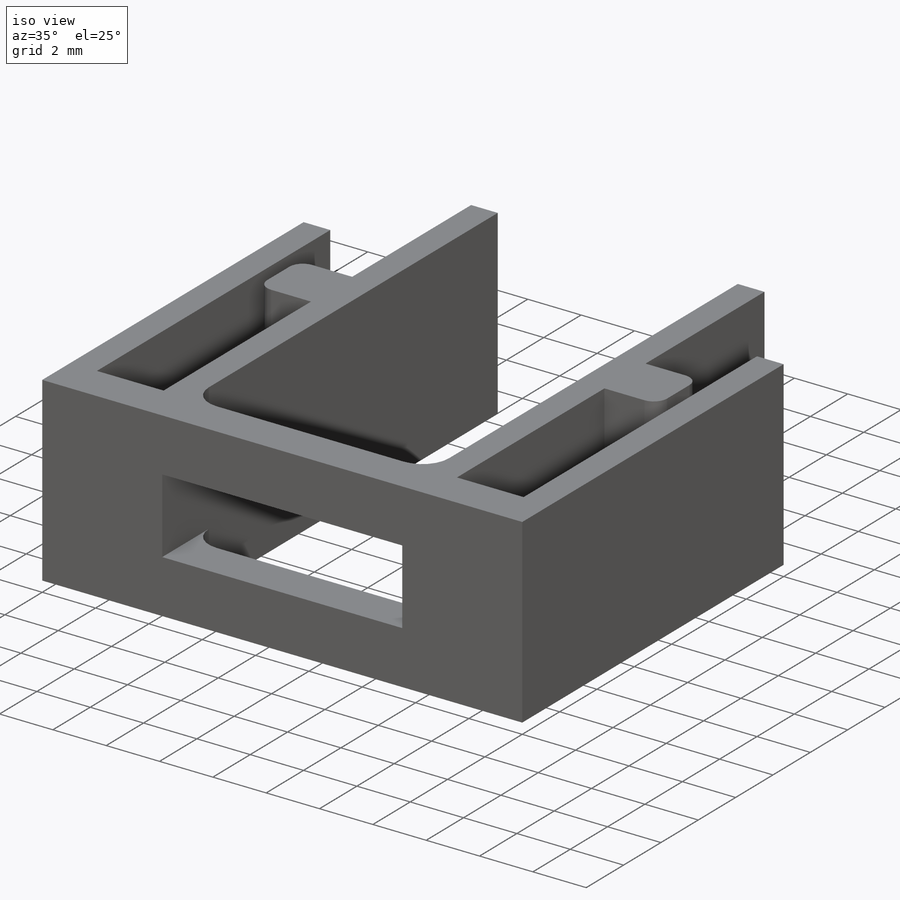
[diagram: iso view]
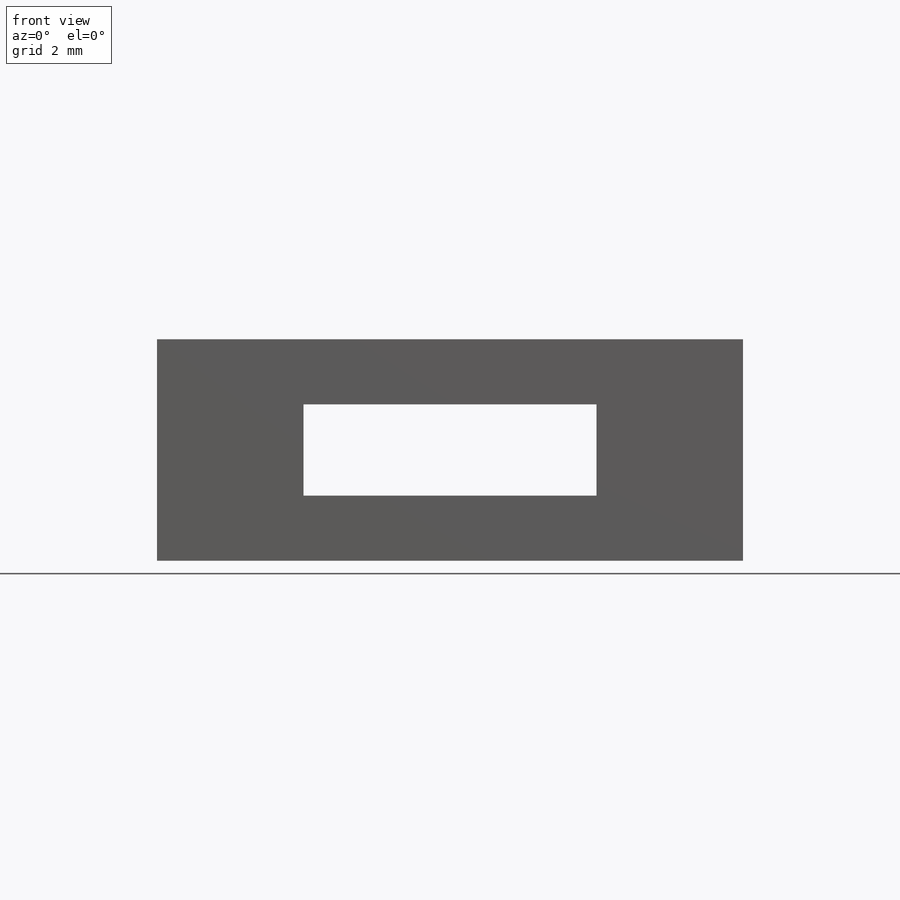
[diagram: front view]
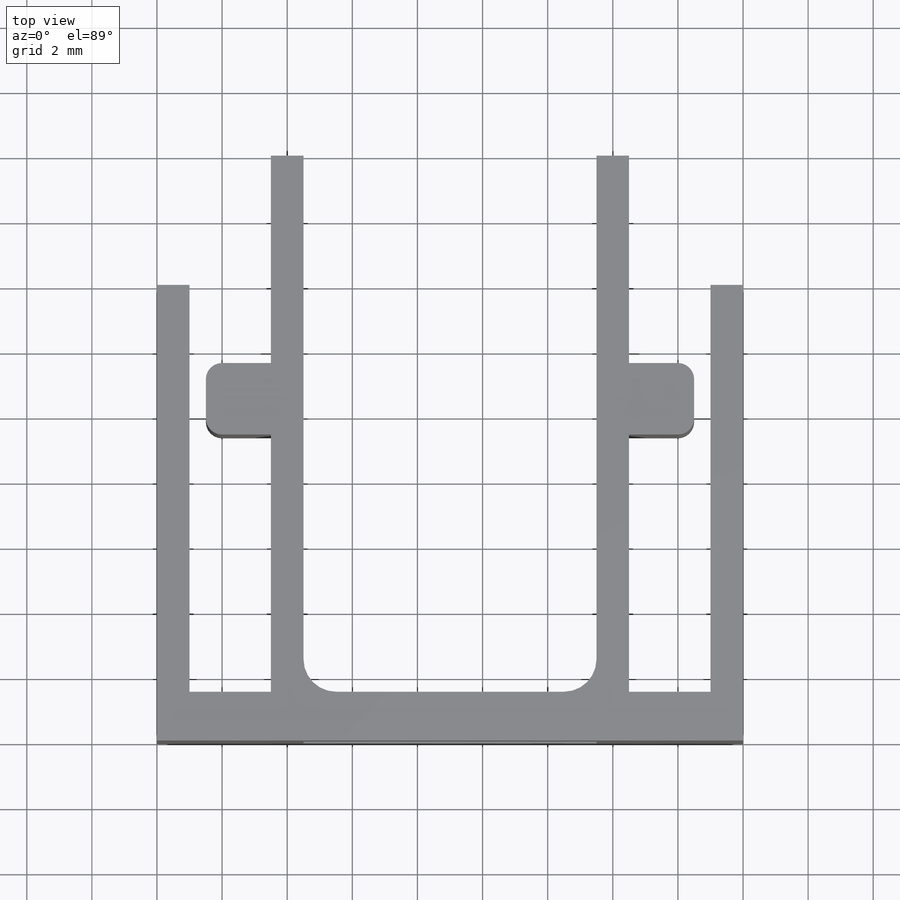
[diagram: top view]
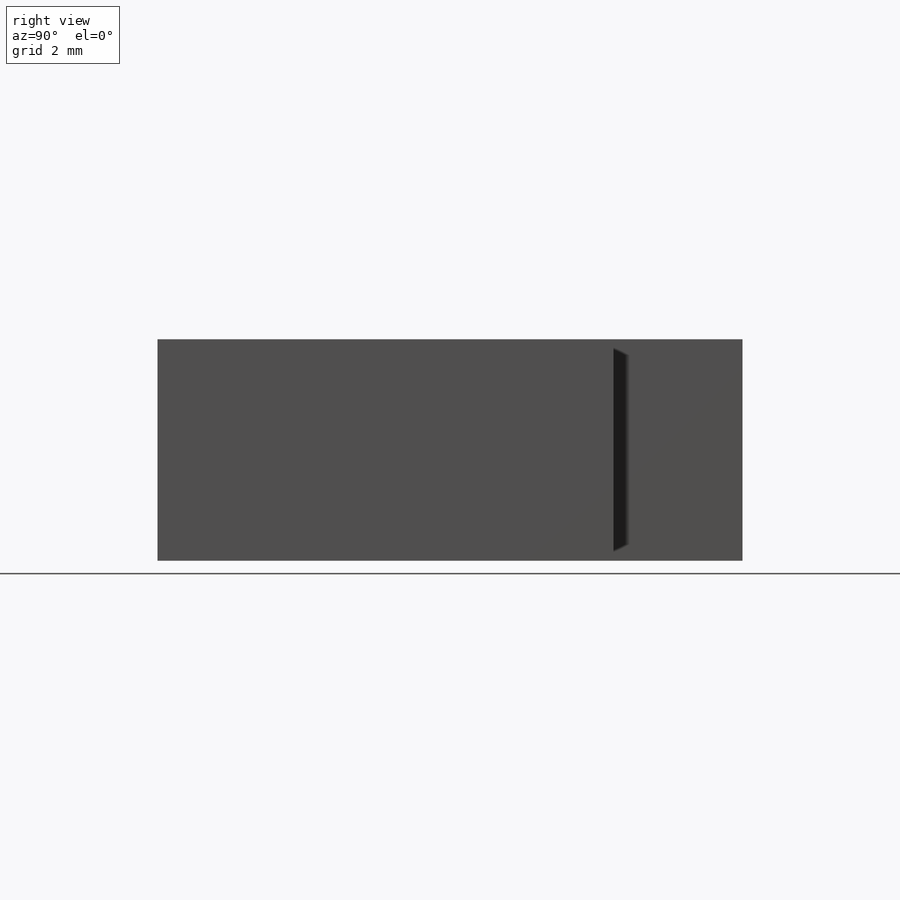
[diagram: right view]
SOLIDWORKS PART (.sldprt)
format: sldprt  version: not decoded by parser v0  size: 214,016 bytes
history: native  units: mm
features: fillet x4, plane x3, sketch x2, material x1, extrude x1, cut_extrude x1 (+9 scaffold rows collapsed)
feature tree (21):
  scaffold x9  (default folders/planes/origin — collapsed)
  material  "Material <sin especificar>"
  plane  "Alzado"
  plane  "Planta"
  plane  "Vista lateral"
  sketch  "Croquis1"  dims[c1.D1=1.5mm c1.D2=1.0mm c1.D3=6.45mm c1.D4=2.1mm c1.D5=16.5mm c1.D6=1.5mm c1.D7=12.5mm c1.D8=2.5mm c1.D9=18.0mm c2.D4=2.2mm c2.D3=6.45mm c2.D6=2.0mm c2.D5=16.5mm c2.D2=1.0mm c2.D7=12.5mm c2.D1=2.5mm c2.D8=1.5mm c3.D3=9.0mm c3.D10=~0.735767mm c3.D11=1.0mm c3.D12=1.0mm c4.D10=90.0deg c4.D12=90.0deg]
  extrude  "Saliente-Extruir1"  Depth=6.8mm
  sketch  "Croquis2"  dims[D1=2.0mm D2=4.5mm D3=1.9mm]
  cut_extrude  "Cortar-Extruir1"  [1 undecoded]
  fillet  "Redondeo1"  Radius=0.5mm
  fillet  "Redondeo2"  Radius=0.5mm
  fillet  "Redondeo3"  Radius=0.5mm
  fillet  "Redondeo4"  Radius=0.5mm
decode coverage: 7 of 8 modeling features carry decoded parameters
note: ~ marks probable driven/reference dimensions
note: 1 parameter value undecoded
note: suppression state not decoded; provenance and decode notes live in map.json
